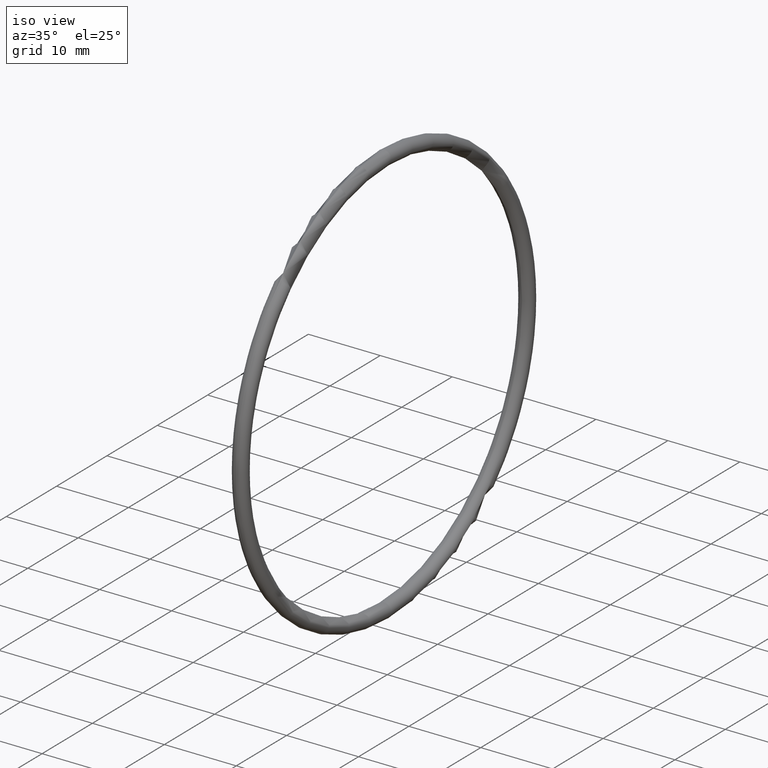
[diagram: clean part render]
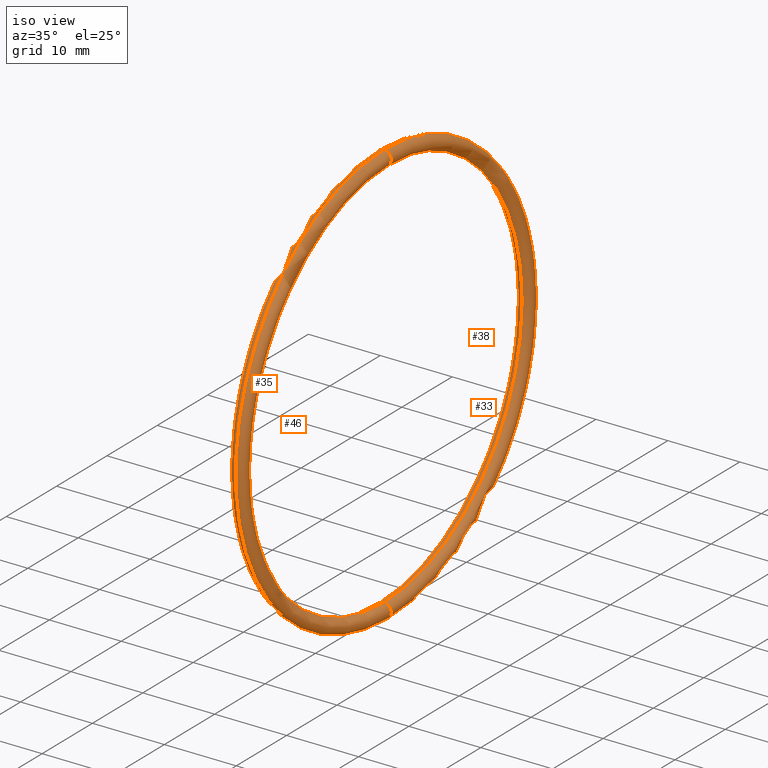
[diagram: same view with one multi-face feature highlighted, each face labeled with its STEP entity id]
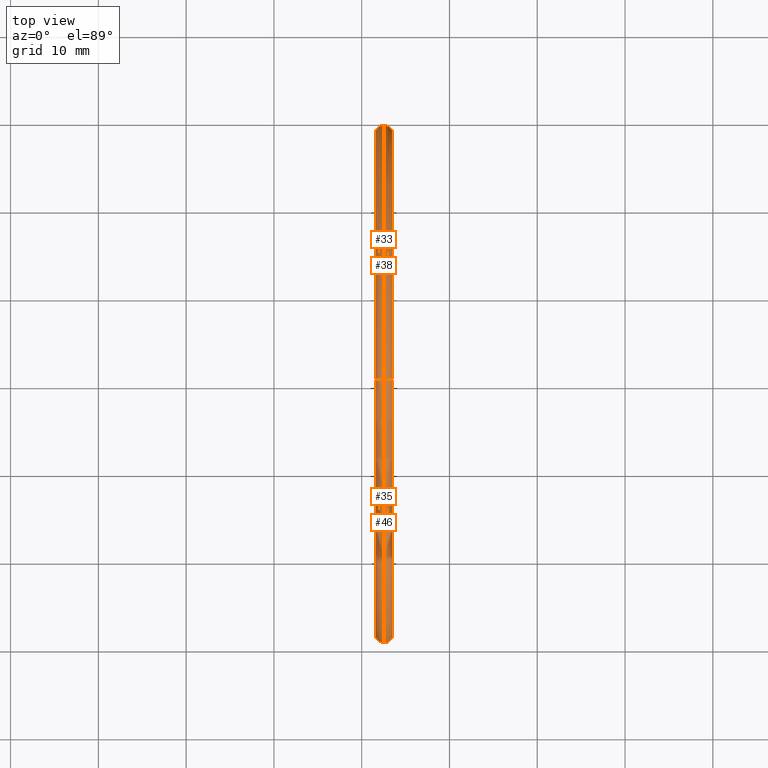
[diagram: same view with one multi-face feature highlighted, each face labeled with its STEP entity id]
A machine part, iso view. The highlighted faces form ONE feature: a constant-radius fillet chain: 4 tangent blend faces with common blend radius 1.016 mm. The faces share edges in the B-rep.
A second angle (top view) of the same feature is appended — it is thin or edge-on in the first view.
Their STEP definitions:
[1] entity #46 (Torus):
#10 = DIRECTION ( 'NONE',  ( 0.0000000000000000000, 0.0000000000000000000, 1.000000000000000000 ) ) ;
#11 = DIRECTION ( 'NONE',  ( -1.000000000000000000, 0.0000000000000000000, 0.0000000000000000000 ) ) ;
#12 = CARTESIAN_POINT ( 'NONE',  ( 0.1000000000000001400, 0.0000000000000000000, 0.0000000000000000000 ) ) ;
#13 = AXIS2_PLACEMENT_3D ( 'NONE', #12, #11, #10 ) ;
#14 = CIRCLE ( 'NONE', #13, 1.080000000000000100 ) ;
#16 = CARTESIAN_POINT ( 'NONE',  ( 0.1000000000000001400, 0.0000000000000000000, 1.160000000000000100 ) ) ;
#17 = DIRECTION ( 'NONE',  ( 0.0000000000000000000, 0.0000000000000000000, 1.000000000000000000 ) ) ;
#18 = DIRECTION ( 'NONE',  ( -1.000000000000000000, 0.0000000000000000000, 0.0000000000000000000 ) ) ;
#19 = CARTESIAN_POINT ( 'NONE',  ( 0.1000000000000001400, 0.0000000000000000000, 0.0000000000000000000 ) ) ;
#20 = AXIS2_PLACEMENT_3D ( 'NONE', #19, #18, #17 ) ;
#21 = CIRCLE ( 'NONE', #20, 1.160000000000000100 ) ;
#24 = EDGE_CURVE ( 'NONE', #65, #25, #21, .T. ) ;
#25 = VERTEX_POINT ( 'NONE', #16 ) ;
#27 = EDGE_CURVE ( 'NONE', #53, #52, #14, .T. ) ;
#28 = ORIENTED_EDGE ( 'NONE', *, *, #45, .F. ) ;
#29 = ORIENTED_EDGE ( 'NONE', *, *, #27, .T. ) ;
#30 = ORIENTED_EDGE ( 'NONE', *, *, #42, .T. ) ;
#42 = EDGE_CURVE ( 'NONE', #52, #25, #70, .T. ) ;
#45 = EDGE_CURVE ( 'NONE', #53, #65, #79, .T. ) ;
#46 = ADVANCED_FACE ( 'NONE', ( #104 ), #93, .T. ) ;
#47 = EDGE_LOOP ( 'NONE', ( #48, #28, #29, #30 ) ) ;
#48 = ORIENTED_EDGE ( 'NONE', *, *, #24, .F. ) ;
#52 = VERTEX_POINT ( 'NONE', #98 ) ;
#53 = VERTEX_POINT ( 'NONE', #97 ) ;
#65 = VERTEX_POINT ( 'NONE', #122 ) ;
#69 = CARTESIAN_POINT ( 'NONE',  ( 0.1000000000000001400, 0.0000000000000000000, 1.120000000000000100 ) ) ;
#70 = CIRCLE ( 'NONE', #82, 0.03999999999999998000 ) ;
#71 = CARTESIAN_POINT ( 'NONE',  ( 0.1000000000000001400, 1.371604415045035500E-016, -1.120000000000000100 ) ) ;
#76 = DIRECTION ( 'NONE',  ( 0.0000000000000000000, -1.224646799147351000E-016, 1.000000000000000000 ) ) ;
#77 = DIRECTION ( 'NONE',  ( 0.0000000000000000000, 1.000000000000000000, 1.224646799147353200E-016 ) ) ;
#78 = AXIS2_PLACEMENT_3D ( 'NONE', #71, #77, #76 ) ;
#79 = CIRCLE ( 'NONE', #78, 0.03999999999999998000 ) ;
#80 = DIRECTION ( 'NONE',  ( 0.0000000000000000000, 0.0000000000000000000, -1.000000000000000000 ) ) ;
#81 = DIRECTION ( 'NONE',  ( 0.0000000000000000000, -1.000000000000000000, 0.0000000000000000000 ) ) ;
#82 = AXIS2_PLACEMENT_3D ( 'NONE', #69, #81, #80 ) ;
#93 = TOROIDAL_SURFACE ( 'NONE', #100, 1.120000000000000100, 0.03999999999999995200 ) ;
#96 = CARTESIAN_POINT ( 'NONE',  ( 0.1000000000000001400, 0.0000000000000000000, 0.0000000000000000000 ) ) ;
#97 = CARTESIAN_POINT ( 'NONE',  ( 0.1000000000000001400, 1.322618543079141500E-016, -1.080000000000000100 ) ) ;
#98 = CARTESIAN_POINT ( 'NONE',  ( 0.1000000000000001400, 0.0000000000000000000, 1.080000000000000100 ) ) ;
#100 = AXIS2_PLACEMENT_3D ( 'NONE', #96, #105, #121 ) ;
#104 = FACE_OUTER_BOUND ( 'NONE', #47, .T. ) ;
#105 = DIRECTION ( 'NONE',  ( -1.000000000000000000, 0.0000000000000000000, 0.0000000000000000000 ) ) ;
#121 = DIRECTION ( 'NONE',  ( 0.0000000000000000000, 0.0000000000000000000, 1.000000000000000000 ) ) ;
#122 = CARTESIAN_POINT ( 'NONE',  ( 0.1000000000000001400, 1.420590287010929800E-016, -1.160000000000000100 ) ) ;
[2] entity #38 (Torus):
#16 = CARTESIAN_POINT ( 'NONE',  ( 0.1000000000000001400, 0.0000000000000000000, 1.160000000000000100 ) ) ;
#23 = EDGE_CURVE ( 'NONE', #52, #53, #63, .T. ) ;
#25 = VERTEX_POINT ( 'NONE', #16 ) ;
#38 = ADVANCED_FACE ( 'NONE', ( #75 ), #67, .T. ) ;
#39 = EDGE_LOOP ( 'NONE', ( #40, #41, #43, #44 ) ) ;
#40 = ORIENTED_EDGE ( 'NONE', *, *, #56, .F. ) ;
#41 = ORIENTED_EDGE ( 'NONE', *, *, #42, .F. ) ;
#42 = EDGE_CURVE ( 'NONE', #52, #25, #70, .T. ) ;
#43 = ORIENTED_EDGE ( 'NONE', *, *, #23, .T. ) ;
#44 = ORIENTED_EDGE ( 'NONE', *, *, #45, .T. ) ;
#45 = EDGE_CURVE ( 'NONE', #53, #65, #79, .T. ) ;
#52 = VERTEX_POINT ( 'NONE', #98 ) ;
#53 = VERTEX_POINT ( 'NONE', #97 ) ;
#56 = EDGE_CURVE ( 'NONE', #25, #65, #113, .T. ) ;
#59 = DIRECTION ( 'NONE',  ( 0.0000000000000000000, 0.0000000000000000000, 1.000000000000000000 ) ) ;
#60 = DIRECTION ( 'NONE',  ( -1.000000000000000000, 0.0000000000000000000, 0.0000000000000000000 ) ) ;
#61 = CARTESIAN_POINT ( 'NONE',  ( 0.1000000000000001400, 0.0000000000000000000, 0.0000000000000000000 ) ) ;
#62 = AXIS2_PLACEMENT_3D ( 'NONE', #61, #60, #59 ) ;
#63 = CIRCLE ( 'NONE', #62, 1.080000000000000100 ) ;
#65 = VERTEX_POINT ( 'NONE', #122 ) ;
#67 = TOROIDAL_SURFACE ( 'NONE', #68, 1.120000000000000100, 0.03999999999999995200 ) ;
#68 = AXIS2_PLACEMENT_3D ( 'NONE', #74, #73, #72 ) ;
#69 = CARTESIAN_POINT ( 'NONE',  ( 0.1000000000000001400, 0.0000000000000000000, 1.120000000000000100 ) ) ;
#70 = CIRCLE ( 'NONE', #82, 0.03999999999999998000 ) ;
#71 = CARTESIAN_POINT ( 'NONE',  ( 0.1000000000000001400, 1.371604415045035500E-016, -1.120000000000000100 ) ) ;
#72 = DIRECTION ( 'NONE',  ( 0.0000000000000000000, 0.0000000000000000000, 1.000000000000000000 ) ) ;
#73 = DIRECTION ( 'NONE',  ( -1.000000000000000000, 0.0000000000000000000, 0.0000000000000000000 ) ) ;
#74 = CARTESIAN_POINT ( 'NONE',  ( 0.1000000000000001400, 0.0000000000000000000, 0.0000000000000000000 ) ) ;
#75 = FACE_OUTER_BOUND ( 'NONE', #39, .T. ) ;
#76 = DIRECTION ( 'NONE',  ( 0.0000000000000000000, -1.224646799147351000E-016, 1.000000000000000000 ) ) ;
#77 = DIRECTION ( 'NONE',  ( 0.0000000000000000000, 1.000000000000000000, 1.224646799147353200E-016 ) ) ;
#78 = AXIS2_PLACEMENT_3D ( 'NONE', #71, #77, #76 ) ;
#79 = CIRCLE ( 'NONE', #78, 0.03999999999999998000 ) ;
#80 = DIRECTION ( 'NONE',  ( 0.0000000000000000000, 0.0000000000000000000, -1.000000000000000000 ) ) ;
#81 = DIRECTION ( 'NONE',  ( 0.0000000000000000000, -1.000000000000000000, 0.0000000000000000000 ) ) ;
#82 = AXIS2_PLACEMENT_3D ( 'NONE', #69, #81, #80 ) ;
#97 = CARTESIAN_POINT ( 'NONE',  ( 0.1000000000000001400, 1.322618543079141500E-016, -1.080000000000000100 ) ) ;
#98 = CARTESIAN_POINT ( 'NONE',  ( 0.1000000000000001400, 0.0000000000000000000, 1.080000000000000100 ) ) ;
#111 = CARTESIAN_POINT ( 'NONE',  ( 0.1000000000000001400, 0.0000000000000000000, 0.0000000000000000000 ) ) ;
#112 = AXIS2_PLACEMENT_3D ( 'NONE', #111, #124, #123 ) ;
#113 = CIRCLE ( 'NONE', #112, 1.160000000000000100 ) ;
#122 = CARTESIAN_POINT ( 'NONE',  ( 0.1000000000000001400, 1.420590287010929800E-016, -1.160000000000000100 ) ) ;
#123 = DIRECTION ( 'NONE',  ( 0.0000000000000000000, 0.0000000000000000000, 1.000000000000000000 ) ) ;
#124 = DIRECTION ( 'NONE',  ( -1.000000000000000000, 0.0000000000000000000, 0.0000000000000000000 ) ) ;
[3] entity #33 (Torus):
#1 = TOROIDAL_SURFACE ( 'NONE', #2, 1.120000000000000100, 0.03999999999999995200 ) ;
#2 = AXIS2_PLACEMENT_3D ( 'NONE', #9, #15, #84 ) ;
#3 = FACE_OUTER_BOUND ( 'NONE', #34, .T. ) ;
#4 = DIRECTION ( 'NONE',  ( 0.0000000000000000000, -1.224646799147351000E-016, 1.000000000000000000 ) ) ;
#5 = DIRECTION ( 'NONE',  ( 0.0000000000000000000, 1.000000000000000000, 1.224646799147353200E-016 ) ) ;
#6 = CARTESIAN_POINT ( 'NONE',  ( 0.1000000000000001400, 1.371604415045035500E-016, -1.120000000000000100 ) ) ;
#7 = AXIS2_PLACEMENT_3D ( 'NONE', #6, #5, #4 ) ;
#8 = CIRCLE ( 'NONE', #7, 0.03999999999999998000 ) ;
#9 = CARTESIAN_POINT ( 'NONE',  ( 0.1000000000000001400, 0.0000000000000000000, 0.0000000000000000000 ) ) ;
#15 = DIRECTION ( 'NONE',  ( -1.000000000000000000, 0.0000000000000000000, 0.0000000000000000000 ) ) ;
#16 = CARTESIAN_POINT ( 'NONE',  ( 0.1000000000000001400, 0.0000000000000000000, 1.160000000000000100 ) ) ;
#23 = EDGE_CURVE ( 'NONE', #52, #53, #63, .T. ) ;
#25 = VERTEX_POINT ( 'NONE', #16 ) ;
#32 = EDGE_CURVE ( 'NONE', #65, #53, #8, .T. ) ;
#33 = ADVANCED_FACE ( 'NONE', ( #3 ), #1, .T. ) ;
#34 = EDGE_LOOP ( 'NONE', ( #54, #55, #57, #58 ) ) ;
#51 = EDGE_CURVE ( 'NONE', #25, #52, #94, .T. ) ;
#52 = VERTEX_POINT ( 'NONE', #98 ) ;
#53 = VERTEX_POINT ( 'NONE', #97 ) ;
#54 = ORIENTED_EDGE ( 'NONE', *, *, #51, .F. ) ;
#55 = ORIENTED_EDGE ( 'NONE', *, *, #56, .T. ) ;
#56 = EDGE_CURVE ( 'NONE', #25, #65, #113, .T. ) ;
#57 = ORIENTED_EDGE ( 'NONE', *, *, #32, .T. ) ;
#58 = ORIENTED_EDGE ( 'NONE', *, *, #23, .F. ) ;
#59 = DIRECTION ( 'NONE',  ( 0.0000000000000000000, 0.0000000000000000000, 1.000000000000000000 ) ) ;
#60 = DIRECTION ( 'NONE',  ( -1.000000000000000000, 0.0000000000000000000, 0.0000000000000000000 ) ) ;
#61 = CARTESIAN_POINT ( 'NONE',  ( 0.1000000000000001400, 0.0000000000000000000, 0.0000000000000000000 ) ) ;
#62 = AXIS2_PLACEMENT_3D ( 'NONE', #61, #60, #59 ) ;
#63 = CIRCLE ( 'NONE', #62, 1.080000000000000100 ) ;
#65 = VERTEX_POINT ( 'NONE', #122 ) ;
#84 = DIRECTION ( 'NONE',  ( 0.0000000000000000000, 0.0000000000000000000, 1.000000000000000000 ) ) ;
#94 = CIRCLE ( 'NONE', #115, 0.03999999999999998000 ) ;
#97 = CARTESIAN_POINT ( 'NONE',  ( 0.1000000000000001400, 1.322618543079141500E-016, -1.080000000000000100 ) ) ;
#98 = CARTESIAN_POINT ( 'NONE',  ( 0.1000000000000001400, 0.0000000000000000000, 1.080000000000000100 ) ) ;
#102 = CARTESIAN_POINT ( 'NONE',  ( 0.1000000000000001400, 0.0000000000000000000, 1.120000000000000100 ) ) ;
#111 = CARTESIAN_POINT ( 'NONE',  ( 0.1000000000000001400, 0.0000000000000000000, 0.0000000000000000000 ) ) ;
#112 = AXIS2_PLACEMENT_3D ( 'NONE', #111, #124, #123 ) ;
#113 = CIRCLE ( 'NONE', #112, 1.160000000000000100 ) ;
#114 = DIRECTION ( 'NONE',  ( 0.0000000000000000000, 0.0000000000000000000, -1.000000000000000000 ) ) ;
#115 = AXIS2_PLACEMENT_3D ( 'NONE', #102, #116, #114 ) ;
#116 = DIRECTION ( 'NONE',  ( 0.0000000000000000000, -1.000000000000000000, 0.0000000000000000000 ) ) ;
#122 = CARTESIAN_POINT ( 'NONE',  ( 0.1000000000000001400, 1.420590287010929800E-016, -1.160000000000000100 ) ) ;
#123 = DIRECTION ( 'NONE',  ( 0.0000000000000000000, 0.0000000000000000000, 1.000000000000000000 ) ) ;
#124 = DIRECTION ( 'NONE',  ( -1.000000000000000000, 0.0000000000000000000, 0.0000000000000000000 ) ) ;
[4] entity #35 (Torus):
#4 = DIRECTION ( 'NONE',  ( 0.0000000000000000000, -1.224646799147351000E-016, 1.000000000000000000 ) ) ;
#5 = DIRECTION ( 'NONE',  ( 0.0000000000000000000, 1.000000000000000000, 1.224646799147353200E-016 ) ) ;
#6 = CARTESIAN_POINT ( 'NONE',  ( 0.1000000000000001400, 1.371604415045035500E-016, -1.120000000000000100 ) ) ;
#7 = AXIS2_PLACEMENT_3D ( 'NONE', #6, #5, #4 ) ;
#8 = CIRCLE ( 'NONE', #7, 0.03999999999999998000 ) ;
#10 = DIRECTION ( 'NONE',  ( 0.0000000000000000000, 0.0000000000000000000, 1.000000000000000000 ) ) ;
#11 = DIRECTION ( 'NONE',  ( -1.000000000000000000, 0.0000000000000000000, 0.0000000000000000000 ) ) ;
#12 = CARTESIAN_POINT ( 'NONE',  ( 0.1000000000000001400, 0.0000000000000000000, 0.0000000000000000000 ) ) ;
#13 = AXIS2_PLACEMENT_3D ( 'NONE', #12, #11, #10 ) ;
#14 = CIRCLE ( 'NONE', #13, 1.080000000000000100 ) ;
#16 = CARTESIAN_POINT ( 'NONE',  ( 0.1000000000000001400, 0.0000000000000000000, 1.160000000000000100 ) ) ;
#17 = DIRECTION ( 'NONE',  ( 0.0000000000000000000, 0.0000000000000000000, 1.000000000000000000 ) ) ;
#18 = DIRECTION ( 'NONE',  ( -1.000000000000000000, 0.0000000000000000000, 0.0000000000000000000 ) ) ;
#19 = CARTESIAN_POINT ( 'NONE',  ( 0.1000000000000001400, 0.0000000000000000000, 0.0000000000000000000 ) ) ;
#20 = AXIS2_PLACEMENT_3D ( 'NONE', #19, #18, #17 ) ;
#21 = CIRCLE ( 'NONE', #20, 1.160000000000000100 ) ;
#24 = EDGE_CURVE ( 'NONE', #65, #25, #21, .T. ) ;
#25 = VERTEX_POINT ( 'NONE', #16 ) ;
#26 = ORIENTED_EDGE ( 'NONE', *, *, #27, .F. ) ;
#27 = EDGE_CURVE ( 'NONE', #53, #52, #14, .T. ) ;
#32 = EDGE_CURVE ( 'NONE', #65, #53, #8, .T. ) ;
#35 = ADVANCED_FACE ( 'NONE', ( #66 ), #87, .T. ) ;
#36 = EDGE_LOOP ( 'NONE', ( #64, #49, #50, #26 ) ) ;
#49 = ORIENTED_EDGE ( 'NONE', *, *, #24, .T. ) ;
#50 = ORIENTED_EDGE ( 'NONE', *, *, #51, .T. ) ;
#51 = EDGE_CURVE ( 'NONE', #25, #52, #94, .T. ) ;
#52 = VERTEX_POINT ( 'NONE', #98 ) ;
#53 = VERTEX_POINT ( 'NONE', #97 ) ;
#64 = ORIENTED_EDGE ( 'NONE', *, *, #32, .F. ) ;
#65 = VERTEX_POINT ( 'NONE', #122 ) ;
#66 = FACE_OUTER_BOUND ( 'NONE', #36, .T. ) ;
#83 = CARTESIAN_POINT ( 'NONE',  ( 0.1000000000000001400, 0.0000000000000000000, 0.0000000000000000000 ) ) ;
#85 = DIRECTION ( 'NONE',  ( 0.0000000000000000000, 0.0000000000000000000, 1.000000000000000000 ) ) ;
#86 = AXIS2_PLACEMENT_3D ( 'NONE', #83, #88, #85 ) ;
#87 = TOROIDAL_SURFACE ( 'NONE', #86, 1.120000000000000100, 0.03999999999999995200 ) ;
#88 = DIRECTION ( 'NONE',  ( -1.000000000000000000, 0.0000000000000000000, 0.0000000000000000000 ) ) ;
#94 = CIRCLE ( 'NONE', #115, 0.03999999999999998000 ) ;
#97 = CARTESIAN_POINT ( 'NONE',  ( 0.1000000000000001400, 1.322618543079141500E-016, -1.080000000000000100 ) ) ;
#98 = CARTESIAN_POINT ( 'NONE',  ( 0.1000000000000001400, 0.0000000000000000000, 1.080000000000000100 ) ) ;
#102 = CARTESIAN_POINT ( 'NONE',  ( 0.1000000000000001400, 0.0000000000000000000, 1.120000000000000100 ) ) ;
#114 = DIRECTION ( 'NONE',  ( 0.0000000000000000000, 0.0000000000000000000, -1.000000000000000000 ) ) ;
#115 = AXIS2_PLACEMENT_3D ( 'NONE', #102, #116, #114 ) ;
#116 = DIRECTION ( 'NONE',  ( 0.0000000000000000000, -1.000000000000000000, 0.0000000000000000000 ) ) ;
#122 = CARTESIAN_POINT ( 'NONE',  ( 0.1000000000000001400, 1.420590287010929800E-016, -1.160000000000000100 ) ) ;